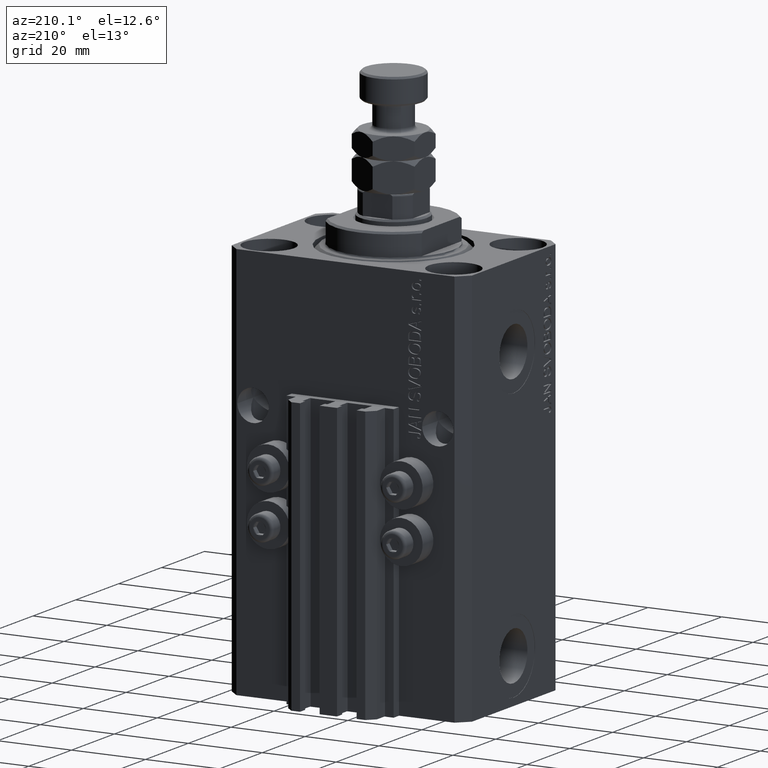
[diagram: clean part render]
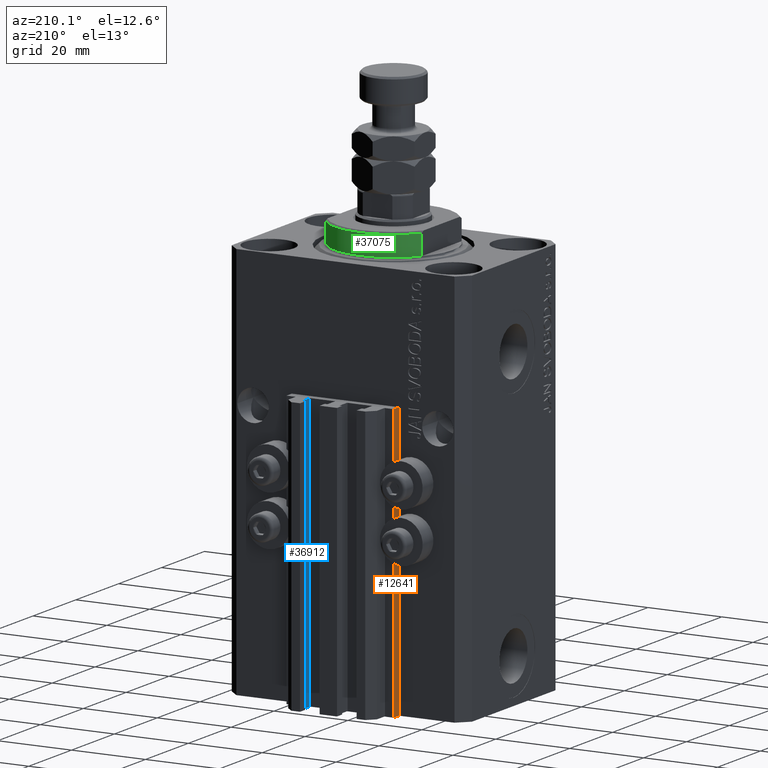
[diagram: same view with three faces highlighted in distinct colors, each labeled with its STEP entity id]
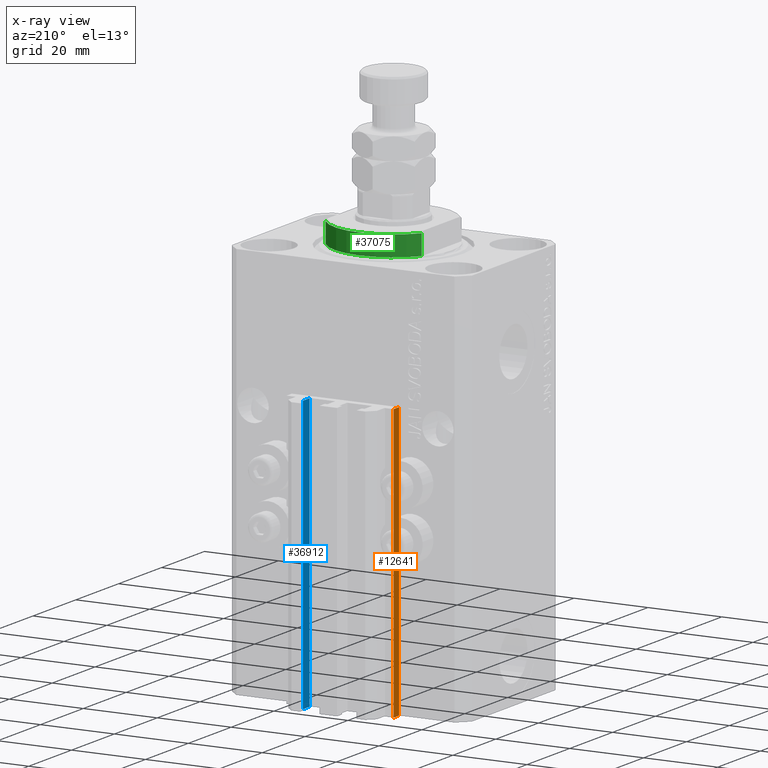
[diagram: x-ray of the same camera — body ghosted, the three highlighted faces saturated]
A machine part, auxiliary view with three faces highlighted in distinct colors.
The next image is the same camera in x-ray (body ghosted, the three faces saturated) — at least one of them is partly hidden behind the body in this view.
Their STEP definitions:

[orange] entity #12641 — the highlighted planar face has unit normal (-1, 0, 0).
#1562 = EDGE_CURVE ( 'NONE', #2544, #32805, #30642, .T. ) ;
#2544 = VERTEX_POINT ( 'NONE', #11616 ) ;
#3128 = DIRECTION ( 'NONE',  ( 0.000000000000000000, -1.000000000000000000, 0.000000000000000000 ) ) ;
#5651 = EDGE_CURVE ( 'NONE', #40766, #2544, #36933, .T. ) ;
#6801 = ORIENTED_EDGE ( 'NONE', *, *, #28505, .F. ) ;
#11218 = FACE_OUTER_BOUND ( 'NONE', #38194, .T. ) ;
#11616 = CARTESIAN_POINT ( 'NONE',  ( -14.50000000000000000, 22.49999999999949907, -107.0000000000000000 ) ) ;
#12269 = ORIENTED_EDGE ( 'NONE', *, *, #5651, .T. ) ;
#12641 = ADVANCED_FACE ( 'NONE', ( #11218 ), #30191, .T. ) ;
#14135 = VECTOR ( 'NONE', #16436, 1000.000000000000000 ) ;
#14659 = DIRECTION ( 'NONE',  ( -1.000000000000000000, 0.000000000000000000, 0.000000000000000000 ) ) ;
#14996 = VERTEX_POINT ( 'NONE', #26084 ) ;
#15481 = CARTESIAN_POINT ( 'NONE',  ( -14.50000000000000000, 24.99999999999949196, -107.0000000000000000 ) ) ;
#15947 = CARTESIAN_POINT ( 'NONE',  ( -14.50000000000000000, 24.99999999999949196, -107.0000000000000000 ) ) ;
#16436 = DIRECTION ( 'NONE',  ( 0.000000000000000000, 0.000000000000000000, 1.000000000000000000 ) ) ;
#17405 = LINE ( 'NONE', #32685, #40904 ) ;
#23030 = DIRECTION ( 'NONE',  ( 0.000000000000000000, 0.000000000000000000, 1.000000000000000000 ) ) ;
#26084 = CARTESIAN_POINT ( 'NONE',  ( -14.50000000000000000, 24.99999999999949196, -33.00000000000000000 ) ) ;
#26092 = EDGE_CURVE ( 'NONE', #40766, #14996, #27279, .T. ) ;
#27279 = LINE ( 'NONE', #15947, #14135 ) ;
#28505 = EDGE_CURVE ( 'NONE', #14996, #32805, #17405, .T. ) ;
#29141 = AXIS2_PLACEMENT_3D ( 'NONE', #29955, #14659, #23030 ) ;
#29955 = CARTESIAN_POINT ( 'NONE',  ( -14.50000000000000000, 24.99999999999949196, -107.0000000000000000 ) ) ;
#30191 = PLANE ( 'NONE',  #29141 ) ;
#30642 = LINE ( 'NONE', #31377, #36145 ) ;
#31085 = CARTESIAN_POINT ( 'NONE',  ( -14.50000000000000000, 22.49999999999949907, -33.00000000000000000 ) ) ;
#31304 = ORIENTED_EDGE ( 'NONE', *, *, #1562, .T. ) ;
#31377 = CARTESIAN_POINT ( 'NONE',  ( -14.50000000000000000, 22.49999999999949907, -107.0000000000000000 ) ) ;
#32685 = CARTESIAN_POINT ( 'NONE',  ( -14.50000000000000000, 24.99999999999949196, -33.00000000000000000 ) ) ;
#32805 = VERTEX_POINT ( 'NONE', #31085 ) ;
#34341 = DIRECTION ( 'NONE',  ( 0.000000000000000000, 0.000000000000000000, 1.000000000000000000 ) ) ;
#35600 = VECTOR ( 'NONE', #3128, 1000.000000000000000 ) ;
#36145 = VECTOR ( 'NONE', #34341, 1000.000000000000000 ) ;
#36933 = LINE ( 'NONE', #45315, #35600 ) ;
#38194 = EDGE_LOOP ( 'NONE', ( #6801, #38584, #12269, #31304 ) ) ;
#38584 = ORIENTED_EDGE ( 'NONE', *, *, #26092, .F. ) ;
#40766 = VERTEX_POINT ( 'NONE', #15481 ) ;
#40904 = VECTOR ( 'NONE', #48464, 1000.000000000000000 ) ;
#45315 = CARTESIAN_POINT ( 'NONE',  ( -14.50000000000000000, 24.99999999999949196, -107.0000000000000000 ) ) ;
#48464 = DIRECTION ( 'NONE',  ( 0.000000000000000000, -1.000000000000000000, 0.000000000000000000 ) ) ;

[blue] entity #36912 — the highlighted planar face has unit normal (-1, 0, 0).
#1039 = VERTEX_POINT ( 'NONE', #45886 ) ;
#2031 = LINE ( 'NONE', #17586, #22059 ) ;
#3614 = CARTESIAN_POINT ( 'NONE',  ( 8.400000000000000355, 27.89999999999950475, -107.0000000000000000 ) ) ;
#3963 = DIRECTION ( 'NONE',  ( -5.421010862427496532E-16, -1.000000000000000000, 0.000000000000000000 ) ) ;
#4382 = VECTOR ( 'NONE', #3963, 1000.000000000000000 ) ;
#4687 = CARTESIAN_POINT ( 'NONE',  ( 8.400000000000000355, 27.89999999999950475, -107.0000000000000000 ) ) ;
#5314 = VERTEX_POINT ( 'NONE', #44405 ) ;
#5522 = DIRECTION ( 'NONE',  ( -5.421010862427496532E-16, -1.000000000000000000, 0.000000000000000000 ) ) ;
#6292 = EDGE_CURVE ( 'NONE', #23585, #1039, #47236, .T. ) ;
#7369 = EDGE_CURVE ( 'NONE', #25239, #5314, #38503, .T. ) ;
#8302 = VECTOR ( 'NONE', #5522, 1000.000000000000000 ) ;
#9023 = FACE_OUTER_BOUND ( 'NONE', #48112, .T. ) ;
#9985 = ORIENTED_EDGE ( 'NONE', *, *, #6292, .T. ) ;
#12978 = EDGE_CURVE ( 'NONE', #1039, #5314, #2031, .T. ) ;
#13473 = PLANE ( 'NONE',  #30110 ) ;
#16072 = ORIENTED_EDGE ( 'NONE', *, *, #12978, .T. ) ;
#17105 = ORIENTED_EDGE ( 'NONE', *, *, #7369, .F. ) ;
#17586 = CARTESIAN_POINT ( 'NONE',  ( 8.400000000000000355, 24.69999999999949125, -107.0000000000000000 ) ) ;
#18501 = ORIENTED_EDGE ( 'NONE', *, *, #39690, .F. ) ;
#21651 = DIRECTION ( 'NONE',  ( 0.000000000000000000, 0.000000000000000000, 1.000000000000000000 ) ) ;
#22059 = VECTOR ( 'NONE', #24733, 1000.000000000000000 ) ;
#23585 = VERTEX_POINT ( 'NONE', #4687 ) ;
#24733 = DIRECTION ( 'NONE',  ( 0.000000000000000000, 0.000000000000000000, 1.000000000000000000 ) ) ;
#25239 = VERTEX_POINT ( 'NONE', #25765 ) ;
#25765 = CARTESIAN_POINT ( 'NONE',  ( 8.400000000000000355, 27.89999999999950475, -33.00000000000000000 ) ) ;
#28265 = DIRECTION ( 'NONE',  ( -1.000000000000000000, 5.421010862427496532E-16, 0.000000000000000000 ) ) ;
#30110 = AXIS2_PLACEMENT_3D ( 'NONE', #47023, #28265, #39133 ) ;
#31931 = CARTESIAN_POINT ( 'NONE',  ( 8.400000000000000355, 27.89999999999950475, -107.0000000000000000 ) ) ;
#33002 = LINE ( 'NONE', #3614, #41251 ) ;
#36912 = ADVANCED_FACE ( 'NONE', ( #9023 ), #13473, .T. ) ;
#38503 = LINE ( 'NONE', #46150, #4382 ) ;
#39133 = DIRECTION ( 'NONE',  ( -5.421010862427496532E-16, -1.000000000000000000, 0.000000000000000000 ) ) ;
#39690 = EDGE_CURVE ( 'NONE', #23585, #25239, #33002, .T. ) ;
#41251 = VECTOR ( 'NONE', #21651, 1000.000000000000000 ) ;
#44405 = CARTESIAN_POINT ( 'NONE',  ( 8.400000000000000355, 24.69999999999949125, -33.00000000000000000 ) ) ;
#45886 = CARTESIAN_POINT ( 'NONE',  ( 8.400000000000000355, 24.69999999999949125, -107.0000000000000000 ) ) ;
#46150 = CARTESIAN_POINT ( 'NONE',  ( 8.400000000000000355, 27.89999999999950475, -33.00000000000000000 ) ) ;
#47023 = CARTESIAN_POINT ( 'NONE',  ( 8.400000000000000355, 27.89999999999950475, -107.0000000000000000 ) ) ;
#47236 = LINE ( 'NONE', #31931, #8302 ) ;
#48112 = EDGE_LOOP ( 'NONE', ( #17105, #18501, #9985, #16072 ) ) ;

[green] entity #37075 — the highlighted cylindrical surface (partial cylindrical patch) has radius 16 mm, axis along (0, 0, -1).
#3246 = VECTOR ( 'NONE', #8615, 1000.000000000000000 ) ;
#5613 = DIRECTION ( 'NONE',  ( -1.000000000000000000, 0.000000000000000000, 0.000000000000000000 ) ) ;
#8615 = DIRECTION ( 'NONE',  ( -0.000000000000000000, -0.000000000000000000, 1.000000000000000000 ) ) ;
#11577 = ORIENTED_EDGE ( 'NONE', *, *, #38604, .T. ) ;
#12147 = CARTESIAN_POINT ( 'NONE',  ( 0.000000000000000000, 0.000000000000000000, -0.4999999999999995559 ) ) ;
#13114 = CARTESIAN_POINT ( 'NONE',  ( 13.00000000000000000, 9.327379053088815652, -0.4999999999999995559 ) ) ;
#13790 = EDGE_CURVE ( 'NONE', #38734, #16584, #24449, .T. ) ;
#14167 = VERTEX_POINT ( 'NONE', #44725 ) ;
#15382 = VERTEX_POINT ( 'NONE', #13114 ) ;
#15408 = CARTESIAN_POINT ( 'NONE',  ( 0.000000000000000000, 0.000000000000000000, -6.500000000000000000 ) ) ;
#15695 = EDGE_CURVE ( 'NONE', #38734, #15382, #20216, .T. ) ;
#16584 = VERTEX_POINT ( 'NONE', #41287 ) ;
#19479 = LINE ( 'NONE', #35258, #48295 ) ;
#20216 = LINE ( 'NONE', #34779, #3246 ) ;
#22208 = ORIENTED_EDGE ( 'NONE', *, *, #40085, .T. ) ;
#24449 = CIRCLE ( 'NONE', #29170, 16.00000000000000000 ) ;
#25774 = CARTESIAN_POINT ( 'NONE',  ( 0.000000000000000000, 0.000000000000000000, -6.000000000000030198 ) ) ;
#26975 = AXIS2_PLACEMENT_3D ( 'NONE', #15408, #33911, #26986 ) ;
#26986 = DIRECTION ( 'NONE',  ( 1.000000000000000000, 0.000000000000000000, 0.000000000000000000 ) ) ;
#28670 = ORIENTED_EDGE ( 'NONE', *, *, #15695, .F. ) ;
#29072 = CARTESIAN_POINT ( 'NONE',  ( 13.00000000000000000, 9.327379053088916905, -6.000000000000021316 ) ) ;
#29170 = AXIS2_PLACEMENT_3D ( 'NONE', #25774, #39677, #5613 ) ;
#33911 = DIRECTION ( 'NONE',  ( -0.000000000000000000, -0.000000000000000000, 1.000000000000000000 ) ) ;
#34779 = CARTESIAN_POINT ( 'NONE',  ( 13.00000000000000000, 9.327379053088813876, -6.500000000000000000 ) ) ;
#35258 = CARTESIAN_POINT ( 'NONE',  ( -13.00000000000000000, 9.327379053088813876, -6.500000000000000000 ) ) ;
#35317 = DIRECTION ( 'NONE',  ( -0.000000000000000000, -0.000000000000000000, -1.000000000000000000 ) ) ;
#37075 = ADVANCED_FACE ( 'NONE', ( #37864 ), #42054, .T. ) ;
#37864 = FACE_OUTER_BOUND ( 'NONE', #45457, .T. ) ;
#38604 = EDGE_CURVE ( 'NONE', #16584, #14167, #19479, .T. ) ;
#38734 = VERTEX_POINT ( 'NONE', #29072 ) ;
#39667 = CIRCLE ( 'NONE', #45978, 16.00000000000000000 ) ;
#39677 = DIRECTION ( 'NONE',  ( 0.000000000000000000, 0.000000000000000000, 1.000000000000000000 ) ) ;
#40085 = EDGE_CURVE ( 'NONE', #14167, #15382, #39667, .T. ) ;
#41266 = ORIENTED_EDGE ( 'NONE', *, *, #13790, .T. ) ;
#41287 = CARTESIAN_POINT ( 'NONE',  ( -13.00000000000000000, 9.327379053088916905, -6.000000000000021316 ) ) ;
#42054 = CYLINDRICAL_SURFACE ( 'NONE', #26975, 16.00000000000000000 ) ;
#42177 = DIRECTION ( 'NONE',  ( -0.000000000000000000, -0.000000000000000000, 1.000000000000000000 ) ) ;
#42968 = DIRECTION ( 'NONE',  ( 1.000000000000000000, -8.881784197001252323E-16, 0.000000000000000000 ) ) ;
#44725 = CARTESIAN_POINT ( 'NONE',  ( -13.00000000000000000, 9.327379053088815652, -0.4999999999999995559 ) ) ;
#45457 = EDGE_LOOP ( 'NONE', ( #28670, #41266, #11577, #22208 ) ) ;
#45978 = AXIS2_PLACEMENT_3D ( 'NONE', #12147, #35317, #42968 ) ;
#48295 = VECTOR ( 'NONE', #42177, 1000.000000000000000 ) ;